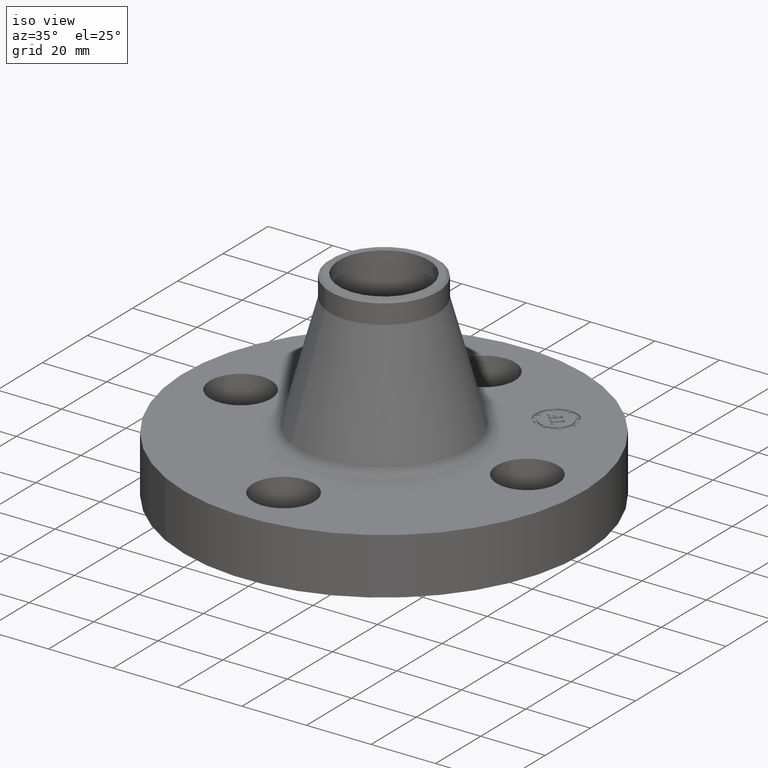
[diagram: clean part render]
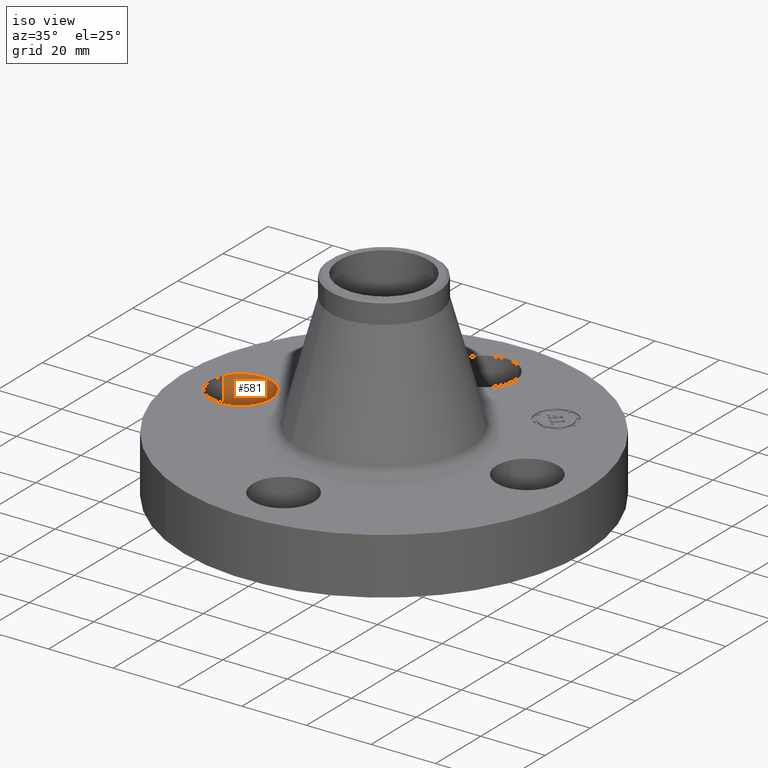
[diagram: same view with one face highlighted and labeled with its STEP entity id]
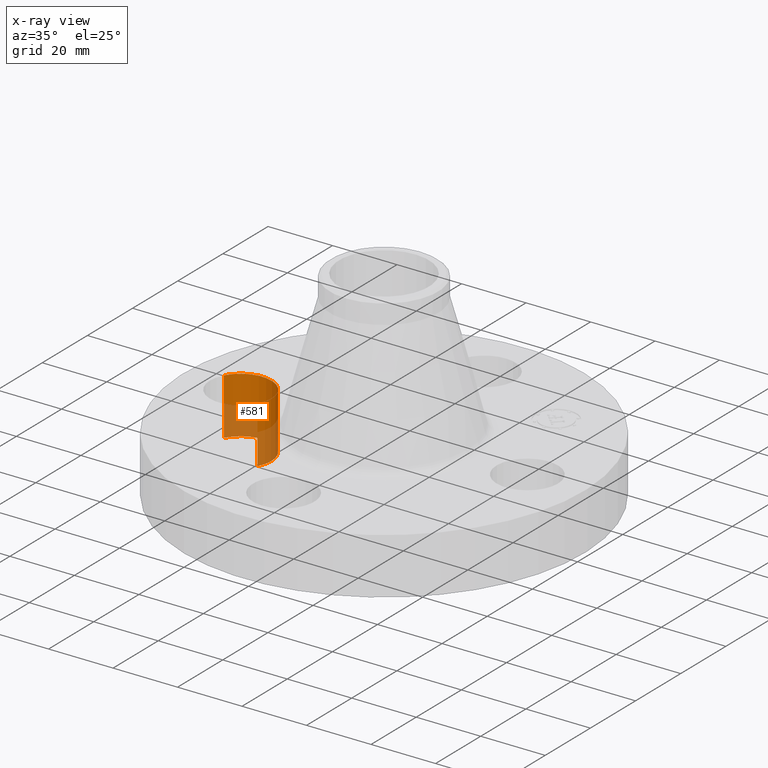
[diagram: x-ray of the same camera — body ghosted, the highlighted face saturated]
A machine part, iso view. The second image highlights one B-rep face of the part: STEP entity #581.
The next image is the same camera in x-ray: the body ghosted, the highlighted face saturated — about 47% of this face is hidden behind the body in this view.
In plain terms, the highlighted cylindrical surface (partial cylindrical patch) has radius 9.525 mm, axis along (-0, 0, -1).
Its self-contained STEP definition (entity closure, byte-faithful):
#470=AXIS2_PLACEMENT_3D('Circle Axis2P3D',#468,#469,$) ;
#542=AXIS2_PLACEMENT_3D('Cylinder Axis2P3D',#539,#540,#541) ;
#572=AXIS2_PLACEMENT_3D('Circle Axis2P3D',#570,#571,$) ;
#463=CARTESIAN_POINT('Vertex',(-1.4209065393,-0.179784576977,0.)) ;
#465=CARTESIAN_POINT('Vertex',(-2.07909346072,0.179784576977,0.)) ;
#468=CARTESIAN_POINT('Axis2P3D Location',(-1.75000000001,-2.09805925913E-016,0.)) ;
#539=CARTESIAN_POINT('Axis2P3D Location',(-1.75000000001,-2.14313189852E-016,0.686062992129)) ;
#544=CARTESIAN_POINT('Line Origine',(-1.4209065393,-0.179784576977,0.345000000001)) ;
#548=CARTESIAN_POINT('Vertex',(-1.4209065393,-0.179784576977,0.690000000003)) ;
#551=CARTESIAN_POINT('Line Origine',(-2.07909346072,0.179784576977,0.345000000001)) ;
#555=CARTESIAN_POINT('Vertex',(-2.07909346072,0.179784576977,0.690000000003)) ;
#570=CARTESIAN_POINT('Axis2P3D Location',(-1.75000000001,-2.14313189852E-016,0.690000000003)) ;
#469=DIRECTION('Axis2P3D Direction',(0.,0.,-0.0393700787402)) ;
#540=DIRECTION('Axis2P3D Direction',(-0.,0.,-0.0393700787402)) ;
#541=DIRECTION('Axis2P3D XDirection',(-0.0345504945626,0.0188750212049,0.)) ;
#545=DIRECTION('Vector Direction',(0.,0.,-0.0393700787402)) ;
#552=DIRECTION('Vector Direction',(0.,0.,-0.0393700787402)) ;
#571=DIRECTION('Axis2P3D Direction',(-0.,0.,-0.0393700787402)) ;
#546=VECTOR('Line Direction',#545,0.0393700787402) ;
#553=VECTOR('Line Direction',#552,0.0393700787402) ;
#576=ORIENTED_EDGE('',*,*,#557,.F.) ;
#577=ORIENTED_EDGE('',*,*,#472,.T.) ;
#578=ORIENTED_EDGE('',*,*,#550,.T.) ;
#579=ORIENTED_EDGE('',*,*,#574,.F.) ;
#581=ADVANCED_FACE('PartBody',(#580),#543,.F.) ;
#471=CIRCLE('generated circle',#470,0.375000000002) ;
#573=CIRCLE('generated circle',#572,0.375000000002) ;
#543=CYLINDRICAL_SURFACE('generated cylinder',#542,0.375000000002) ;
#472=EDGE_CURVE('',#466,#464,#471,.T.) ;
#550=EDGE_CURVE('',#464,#549,#547,.F.) ;
#557=EDGE_CURVE('',#466,#556,#554,.F.) ;
#574=EDGE_CURVE('',#556,#549,#573,.T.) ;
#575=EDGE_LOOP('',(#576,#577,#578,#579)) ;
#580=FACE_OUTER_BOUND('',#575,.T.) ;
#547=LINE('Line',#544,#546) ;
#554=LINE('Line',#551,#553) ;
#464=VERTEX_POINT('',#463) ;
#466=VERTEX_POINT('',#465) ;
#549=VERTEX_POINT('',#548) ;
#556=VERTEX_POINT('',#555) ;